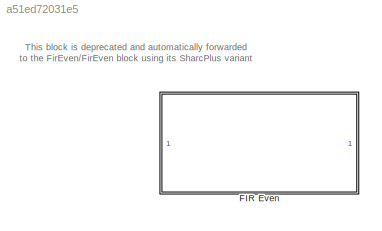
MODEL slx_a51ed72031e5
KIND library
CONFIG AbsTol = auto
CONFIG EnableMultiTasking = off
CONFIG FixedStep = auto
CONFIG MaxStep = auto
CONFIG MinStep = auto
CONFIG RelTol = 1e-3
CONFIG SampleTimeConstraint = Unconstrained
CONFIG SolverName = VariableStepAuto
CONFIG StartTime = 0.0
CONFIG StopTime = 10.0
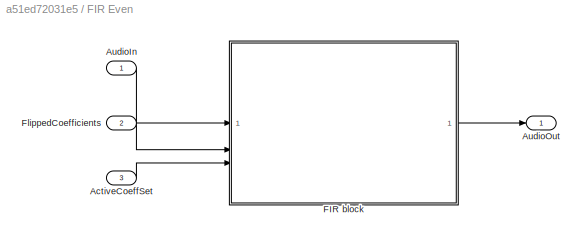
BLOCK [SubSystem] FIR Even
  Commented = on
BLOCK [Inport] FIR Even/ActiveCoeffSet
  Port = 3
BLOCK [Inport] FIR Even/AudioIn
BLOCK [Outport] FIR Even/AudioOut
  VectorParamsAs1DForOutWhenUnconnected = off
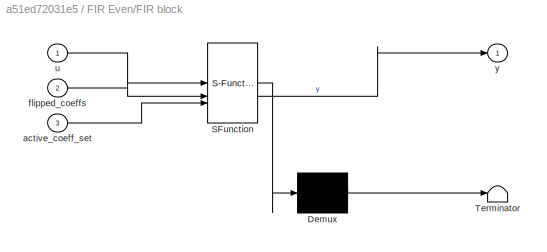
BLOCK [SubSystem] FIR Even/FIR block 
  ErrorFcn = Stateflow.Translate.translate
  PermitHierarchicalResolution = ExplicitOnly
  SFBlockType = MATLAB Function
  TreatAsAtomicUnit = on
BLOCK [Demux] FIR Even/FIR block / Demux 
  Outputs = 1
BLOCK [S-Function] FIR Even/FIR block / SFunction 
  EnableBusSupport = off
  FunctionName = sf_sfun
  PortCounts = [3 2]
  SFcnIsStateOwnerBlock = off
  SFunctionDeploymentMode = off
  Tag = Stateflow S-Function 1
BLOCK [Terminator] FIR Even/FIR block / Terminator 
BLOCK [Inport] FIR Even/FIR block /active_coeff_set
  Port = 3
BLOCK [Inport] FIR Even/FIR block /flipped_coeffs
  Port = 2
BLOCK [Inport] FIR Even/FIR block /u
BLOCK [Outport] FIR Even/FIR block /y
  VectorParamsAs1DForOutWhenUnconnected = off
BLOCK [Inport] FIR Even/FlippedCoefficients
  Port = 2
ANNOTATION (root): This block is deprecated and automatically forwarded to the FirEven/FirEven block using its SharcPlus variant
LINE FIR Even/ActiveCoeffSet:1 -> FIR Even/FIR block :3
LINE FIR Even/AudioIn:1 -> FIR Even/FIR block :1
LINE FIR Even/FIR block :1 -> FIR Even/AudioOut:1
LINE FIR Even/FlippedCoefficients:1 -> FIR Even/FIR block :2
CHART FIR Even/FIR block
 states=1 transitions=1
  STATE_LABEL 'eML_blk_kernel()'
  STATE_LABEL 'SCRIPT:\nfunction y = fir_even_filter(u, flipped_coeffs, active_coeff_set)\n\n% Extract configuration information from inputs\n[taps, ~] = size(flipped_coeffs);\n[frame_size, num_channels] = size(u);\n\n% Initialize state variables to zero\npersistent states;\nif isempty(states)\n    states = single(zeros(taps + 2, num_channels));\nend\n% Initialize state index to zero\npersistent state_index;\nif isempty(state...<+1211ch>'
CHART  states=0 transitions=0
